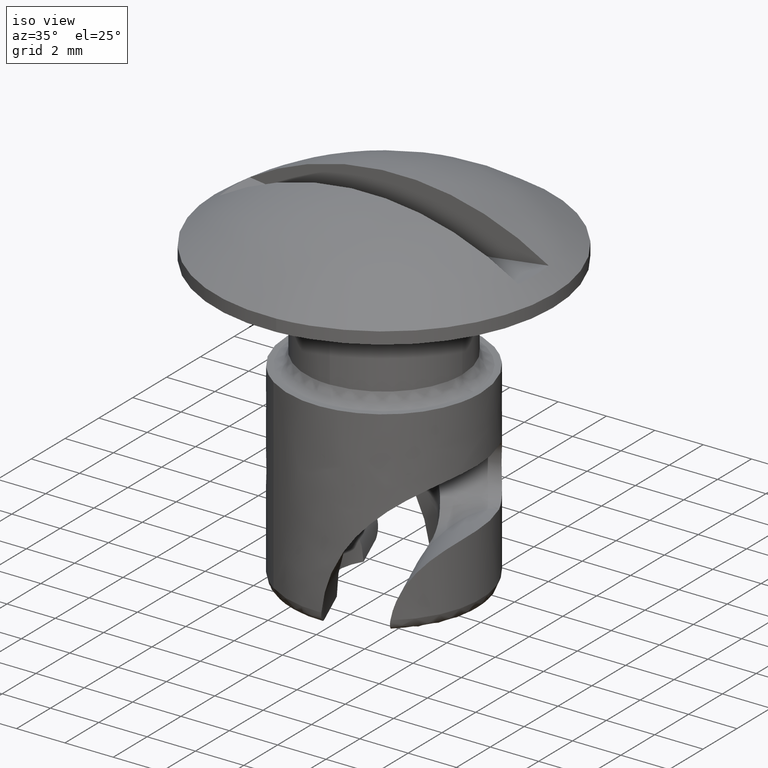
[diagram: clean part render]
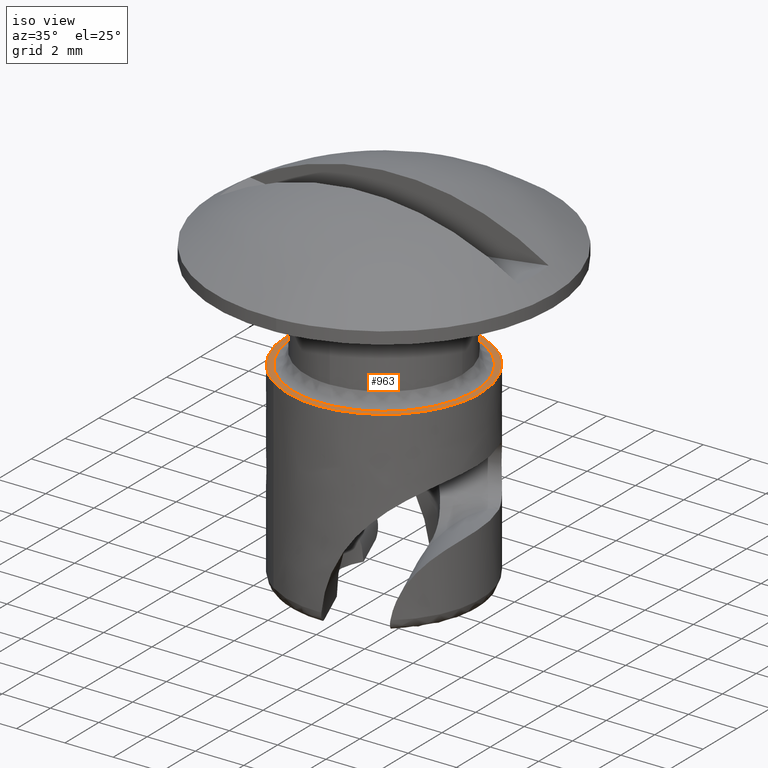
[diagram: same view with one face highlighted and labeled with its STEP entity id]
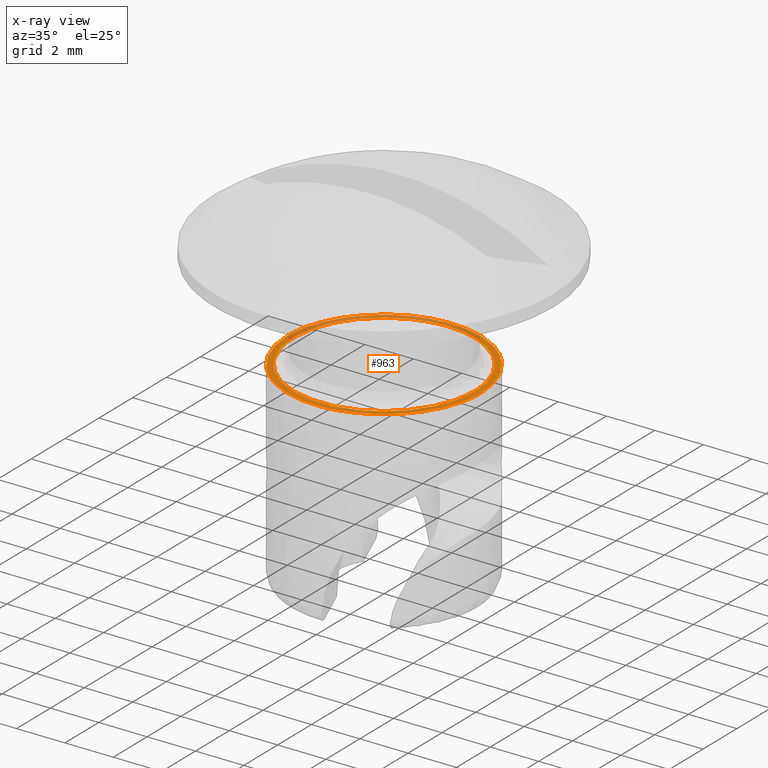
[diagram: x-ray of the same camera — body ghosted, the highlighted face saturated]
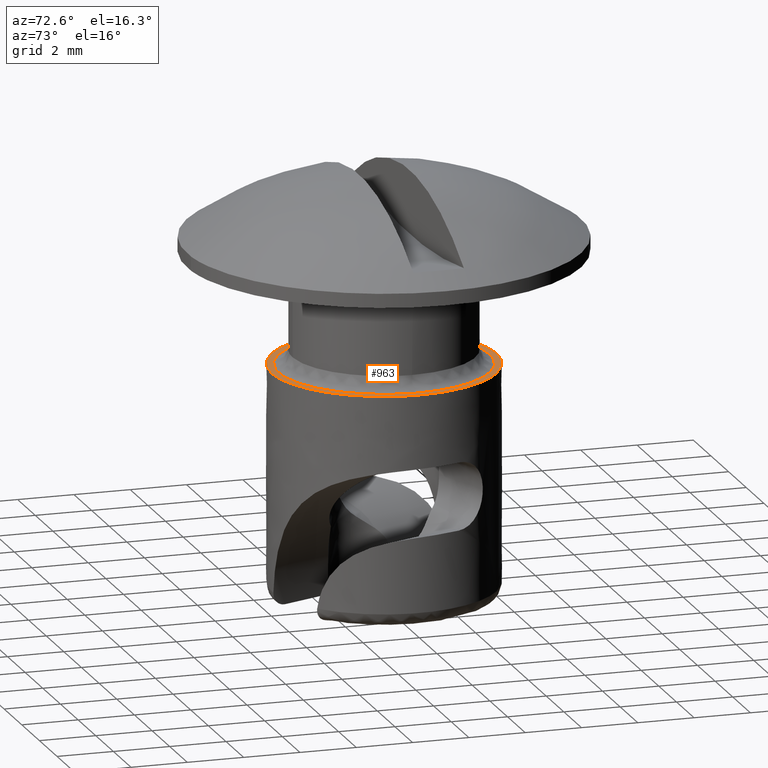
[diagram: same view with one face highlighted and labeled with its STEP entity id]
A machine part, iso view. The second image highlights one B-rep face of the part: STEP entity #963.
The next image is the same camera in x-ray: the body ghosted, the highlighted face saturated — about 32% of this face is hidden behind the body in this view.
A second angle (auxiliary view) of the same face is appended — the face is thin or edge-on in the first view.
In plain terms, the highlighted face is a freeform B-spline surface patch.
Its self-contained STEP definition (entity closure, byte-faithful):
#731=CARTESIAN_POINT('',(-3.750000000000000,0.0,-3.999992000000205));
#732=VERTEX_POINT('',#731);
#733=CARTESIAN_POINT('',(-3.749703915248357,0.047122649624261,-3.999992000000190));
#734=VERTEX_POINT('',#733);
#735=CARTESIAN_POINT('',(-3.750000000000000,0.0,-3.999992000000205));
#736=CARTESIAN_POINT('',(-3.749999999742452,0.023562255000435,-3.999992000000198));
#737=CARTESIAN_POINT('',(-3.749703915248356,0.047122649624261,-3.999992000000190));
#745=(BOUNDED_CURVE()B_SPLINE_CURVE(2,(#735,#736,#737),.UNSPECIFIED.,.F.,.U.)B_SPLINE_CURVE_WITH_KNOTS((3,3),(0.500000000000000,0.502215704081469),.UNSPECIFIED.)CURVE()GEOMETRIC_REPRESENTATION_ITEM()RATIONAL_B_SPLINE_CURVE((1.0,0.997404141198562,0.994854295636654))REPRESENTATION_ITEM(''));
#746=EDGE_CURVE('',#732,#734,#745,.T.);
#748=CARTESIAN_POINT('',(3.749703915248357,-0.047122649624261,-3.999992000000175));
#749=VERTEX_POINT('',#748);
#750=CARTESIAN_POINT('',(3.749703915248357,-0.047122649624261,-3.999992000000175));
#751=CARTESIAN_POINT('',(3.747692243962044,-0.207532549941390,-3.999992000000179));
#752=CARTESIAN_POINT('',(3.721281962844098,-0.550991280395473,-3.999992000000171));
#753=CARTESIAN_POINT('',(3.604041005647385,-1.089889313004736,-3.999992000000218));
#754=CARTESIAN_POINT('',(3.387790867123681,-1.647304414464119,-3.999992000000125));
#755=CARTESIAN_POINT('',(3.079004083451685,-2.168218418047433,-3.999992000000293));
#756=CARTESIAN_POINT('',(2.686972144175171,-2.639376201425642,-3.999992000000025));
#757=CARTESIAN_POINT('',(2.270080389028266,-3.001246220213727,-3.999992000000301));
#758=CARTESIAN_POINT('',(1.864525800322066,-3.261882883429304,-3.999992000000127));
#759=CARTESIAN_POINT('',(1.481558131621359,-3.453678741363479,-3.999992000000203));
#760=CARTESIAN_POINT('',(1.086241139929066,-3.598535615152493,-3.999992000000195));
#761=CARTESIAN_POINT('',(0.684168899137651,-3.693545747917341,-3.999992000000207));
#762=CARTESIAN_POINT('',(0.259608568193752,-3.749586295492530,-3.999992000000203));
#763=CARTESIAN_POINT('',(-0.176848918702472,-3.756178202687441,-3.999992000000207));
#764=CARTESIAN_POINT('',(-0.693856039809802,-3.697387748418087,-3.999992000000205));
#765=CARTESIAN_POINT('',(-1.265493653762731,-3.551005272313260,-3.999992000000206));
#766=CARTESIAN_POINT('',(-1.824175047538319,-3.296150164202622,-3.999992000000204));
#767=CARTESIAN_POINT('',(-2.294022207715006,-2.979502800560073,-3.999992000000205));
#768=CARTESIAN_POINT('',(-2.621613442748406,-2.691411142214324,-3.999992000000202));
#769=CARTESIAN_POINT('',(-2.962906422298065,-2.319568754656141,-3.999992000000210));
#770=CARTESIAN_POINT('',(-3.249687033661092,-1.902138058682559,-3.999992000000201));
#771=CARTESIAN_POINT('',(-3.497348873247582,-1.384294001408534,-3.999992000000203));
#772=CARTESIAN_POINT('',(-3.645334319453397,-0.924980011380784,-3.999992000000205));
#773=CARTESIAN_POINT('',(-3.731766310221203,-0.450708986480115,-3.999992000000203));
#774=CARTESIAN_POINT('',(-3.750004755178723,-0.152783584593169,-3.999992000000207));
#775=CARTESIAN_POINT('',(-3.750000000000000,0.0,-3.999992000000205));
#776=B_SPLINE_CURVE_WITH_KNOTS('',3,(#750,#751,#752,#753,#754,#755,#756,#757,#758,#759,#760,#761,#762,#763,#764,#765,#766,#767,#768,#769,#770,#771,#772,#773,#774,#775),.UNSPECIFIED.,.F.,.U.,(4,1,1,1,1,1,1,1,1,1,1,1,1,1,1,1,1,1,1,1,1,1,1,4),(0.000000021437945,0.481268429929072,1.031292887368121,1.650072485586046,2.268853387291683,2.841796062553922,3.483492875315552,3.918933511557905,4.285612166466626,4.766891789918317,5.179403761802127,5.523175956074534,6.050271183722716,6.485701721799428,7.081564013445127,7.814937288409130,8.319126123765287,8.777482577953810,9.121249274211788,9.831702170875873,10.290054036674920,10.840085076701831,11.275515986907619,11.733866820730469),.UNSPECIFIED.);
#777=EDGE_CURVE('',#749,#732,#776,.T.);
#834=CARTESIAN_POINT('',(3.750000000000000,0.0,-3.999992000000175));
#835=VERTEX_POINT('',#834);
#836=CARTESIAN_POINT('',(-3.749703915248357,0.047122649624261,-3.999992000000190));
#837=CARTESIAN_POINT('',(-3.747129433374733,0.253363600794082,-3.999992000000185));
#838=CARTESIAN_POINT('',(-3.716540006398170,0.573845598918485,-3.999992000000203));
#839=CARTESIAN_POINT('',(-3.604721136489934,1.066022886299810,-3.999992000000165));
#840=CARTESIAN_POINT('',(-3.452910870079713,1.491691136023359,-3.999992000000260));
#841=CARTESIAN_POINT('',(-3.217467258414122,1.947230583278478,-3.999992000000017));
#842=CARTESIAN_POINT('',(-2.963589500260666,2.311693793466605,-3.999992000000620));
#843=CARTESIAN_POINT('',(-2.679744476167414,2.632361004297786,-3.999991999999509));
#844=CARTESIAN_POINT('',(-2.331200824700913,2.954118041913601,-3.999992000000794));
#845=CARTESIAN_POINT('',(-1.907635607419273,3.245016773124950,-3.999991999999849));
#846=CARTESIAN_POINT('',(-1.370619689968664,3.505790181621537,-3.999992000000306));
#847=CARTESIAN_POINT('',(-0.865450849264229,3.663354720443288,-3.999992000000161));
#848=CARTESIAN_POINT('',(-0.282977797443569,3.752941737837827,-3.999992000000177));
#849=CARTESIAN_POINT('',(0.200039021574794,3.755815042604080,-3.999992000000189));
#850=CARTESIAN_POINT('',(0.670438853554543,3.696472281837978,-3.999992000000188));
#851=CARTESIAN_POINT('',(1.102642196322479,3.595583845414126,-3.999992000000176));
#852=CARTESIAN_POINT('',(1.611490089338022,3.403631619965094,-3.999992000000016));
#853=CARTESIAN_POINT('',(2.117282738982615,3.114277436359454,-3.999992000000672));
#854=CARTESIAN_POINT('',(2.588370195076368,2.734464524143226,-3.999992000000023));
#855=CARTESIAN_POINT('',(2.923007406743407,2.365326088100213,-3.999992000000263));
#856=CARTESIAN_POINT('',(3.234518408219001,1.920706299155115,-3.999992000000143));
#857=CARTESIAN_POINT('',(3.445719488436710,1.511743444091972,-3.999992000000187));
#858=CARTESIAN_POINT('',(3.599574207768138,1.071287743511634,-3.999992000000173));
#859=CARTESIAN_POINT('',(3.714766378980970,0.603484481283347,-3.999992000000177));
#860=CARTESIAN_POINT('',(3.750029536569991,0.244456337260239,-3.999992000000174));
#861=CARTESIAN_POINT('',(3.750000000000000,0.0,-3.999992000000175));
#862=B_SPLINE_CURVE_WITH_KNOTS('',3,(#836,#837,#838,#839,#840,#841,#842,#843,#844,#845,#846,#847,#848,#849,#850,#851,#852,#853,#854,#855,#856,#857,#858,#859,#860,#861),.UNSPECIFIED.,.F.,.U.,(4,1,1,1,1,1,1,1,1,1,1,1,1,1,1,1,1,1,1,1,1,1,1,4),(0.000000021432067,0.618768137977805,0.962543407803425,1.512566999762935,1.970921978823681,2.498030377302669,2.841796062549857,3.254315360221586,3.918933511554236,4.377285247333264,5.041905223038597,5.500252470598505,6.141939090742394,6.485701721797215,6.921139376724866,7.471166755905084,8.112867235979035,8.662893802605069,9.281674294320306,9.602524146748138,10.290054036674780,10.656742618813560,11.000504883526981,11.733866820730469),.UNSPECIFIED.);
#863=EDGE_CURVE('',#734,#835,#862,.T.);
#870=CARTESIAN_POINT('',(3.750000000000000,0.0,-3.999992000000175));
#871=CARTESIAN_POINT('',(3.749999999742452,-0.023562255000435,-3.999992000000176));
#872=CARTESIAN_POINT('',(3.749703915248357,-0.047122649624261,-3.999992000000175));
#880=(BOUNDED_CURVE()B_SPLINE_CURVE(2,(#870,#871,#872),.UNSPECIFIED.,.F.,.U.)B_SPLINE_CURVE_WITH_KNOTS((3,3),(0.0,0.002215704081469),.UNSPECIFIED.)CURVE()GEOMETRIC_REPRESENTATION_ITEM()RATIONAL_B_SPLINE_CURVE((1.0,0.997404141198562,0.994854295636654))REPRESENTATION_ITEM(''));
#881=EDGE_CURVE('',#835,#749,#880,.T.);
#886=CARTESIAN_POINT('',(-4.399599984494448,-4.398605808620443,-3.999992000000205));
#887=CARTESIAN_POINT('',(4.399600199071169,-4.398605808620443,-3.999992000000205));
#888=CARTESIAN_POINT('',(-4.399599984494448,4.398605808620443,-3.999992000000205));
#889=CARTESIAN_POINT('',(4.399600199071169,4.398605808620443,-3.999992000000205));
#890=B_SPLINE_SURFACE_WITH_KNOTS('',1,1,((#886,#888),(#887,#889)),.UNSPECIFIED.,.F.,.F.,.U.,(2,2),(2,2),(0.0,8.799200183565617),(0.0,8.797211617240887),.UNSPECIFIED.);
#891=CARTESIAN_POINT('',(4.0,0.0,-3.999992000000230));
#892=VERTEX_POINT('',#891);
#893=CARTESIAN_POINT('',(2.259197510015699,3.300912996541445,-3.999992000000230));
#894=VERTEX_POINT('',#893);
#895=CARTESIAN_POINT('',(4.0,0.0,-3.999992000000230));
#896=CARTESIAN_POINT('',(3.999999999999908,2.109480003632687,-3.999992000000229));
#897=CARTESIAN_POINT('',(2.259197510015699,3.300912996541445,-3.999992000000230));
#905=(BOUNDED_CURVE()B_SPLINE_CURVE(2,(#895,#896,#897),.UNSPECIFIED.,.F.,.U.)B_SPLINE_CURVE_WITH_KNOTS((3,3),(0.0,0.153025893260789),.UNSPECIFIED.)CURVE()GEOMETRIC_REPRESENTATION_ITEM()RATIONAL_B_SPLINE_CURVE((1.0,0.820719014244174,0.860915092408029))REPRESENTATION_ITEM(''));
#906=EDGE_CURVE('',#892,#894,#905,.T.);
#907=ORIENTED_EDGE('',*,*,#906,.T.);
#908=CARTESIAN_POINT('',(-4.0,0.0,-3.999992000000230));
#909=VERTEX_POINT('',#908);
#910=CARTESIAN_POINT('',(2.259197510015699,3.300912996541445,-3.999992000000230));
#911=CARTESIAN_POINT('',(1.237761639447398,3.999999999999750,-3.999992000000230));
#912=CARTESIAN_POINT('',(-1.424406E-013,3.999999999999792,-3.999992000000229));
#913=CARTESIAN_POINT('',(-4.000000000000049,3.999999999999929,-3.999992000000229));
#914=CARTESIAN_POINT('',(-4.0,0.0,-3.999992000000230));
#922=(BOUNDED_CURVE()B_SPLINE_CURVE(2,(#910,#911,#912,#913,#914),.UNSPECIFIED.,.F.,.U.)B_SPLINE_CURVE_WITH_KNOTS((3,2,3),(0.153025893260789,0.250000000000000,0.500000000000000),.UNSPECIFIED.)CURVE()GEOMETRIC_REPRESENTATION_ITEM()RATIONAL_B_SPLINE_CURVE((0.860915092408029,0.886387766942373,1.0,0.707106781186548,1.0))REPRESENTATION_ITEM(''));
#923=EDGE_CURVE('',#894,#909,#922,.T.);
#924=ORIENTED_EDGE('',*,*,#923,.T.);
#925=CARTESIAN_POINT('',(-2.259197510500350,-3.300912996209743,-3.999992000000230));
#926=VERTEX_POINT('',#925);
#927=CARTESIAN_POINT('',(-4.0,0.0,-3.999992000000230));
#928=CARTESIAN_POINT('',(-3.999999999999907,-2.109480003257371,-3.999992000000230));
#929=CARTESIAN_POINT('',(-2.259197510500349,-3.300912996209743,-3.999992000000230));
#937=(BOUNDED_CURVE()B_SPLINE_CURVE(2,(#927,#928,#929),.UNSPECIFIED.,.F.,.U.)B_SPLINE_CURVE_WITH_KNOTS((3,3),(0.500000000000000,0.653025893238444),.UNSPECIFIED.)CURVE()GEOMETRIC_REPRESENTATION_ITEM()RATIONAL_B_SPLINE_CURVE((1.0,0.820719014270353,0.860915092396290))REPRESENTATION_ITEM(''));
#938=EDGE_CURVE('',#909,#926,#937,.T.);
#939=ORIENTED_EDGE('',*,*,#938,.T.);
#940=CARTESIAN_POINT('',(-2.259197510500349,-3.300912996209743,-3.999992000000230));
#941=CARTESIAN_POINT('',(-1.237761639769162,-3.999999999999750,-3.999992000000230));
#942=CARTESIAN_POINT('',(1.431189E-013,-3.999999999999793,-3.999992000000230));
#943=CARTESIAN_POINT('',(4.000000000000049,-3.999999999999929,-3.999992000000229));
#944=CARTESIAN_POINT('',(4.0,0.0,-3.999992000000230));
#952=(BOUNDED_CURVE()B_SPLINE_CURVE(2,(#940,#941,#942,#943,#944),.UNSPECIFIED.,.F.,.U.)B_SPLINE_CURVE_WITH_KNOTS((3,2,3),(0.653025893238444,0.750000000000000,1.0),.UNSPECIFIED.)CURVE()GEOMETRIC_REPRESENTATION_ITEM()RATIONAL_B_SPLINE_CURVE((0.860915092396290,0.886387766916194,1.0,0.707106781186548,1.0))REPRESENTATION_ITEM(''));
#953=EDGE_CURVE('',#926,#892,#952,.T.);
#954=ORIENTED_EDGE('',*,*,#953,.T.);
#955=EDGE_LOOP('',(#907,#924,#939,#954));
#956=FACE_OUTER_BOUND('',#955,.T.);
#957=ORIENTED_EDGE('',*,*,#881,.T.);
#958=ORIENTED_EDGE('',*,*,#777,.T.);
#959=ORIENTED_EDGE('',*,*,#746,.T.);
#960=ORIENTED_EDGE('',*,*,#863,.T.);
#961=EDGE_LOOP('',(#957,#958,#959,#960));
#962=FACE_BOUND('',#961,.T.);
#963=ADVANCED_FACE('',(#956,#962),#890,.T.);